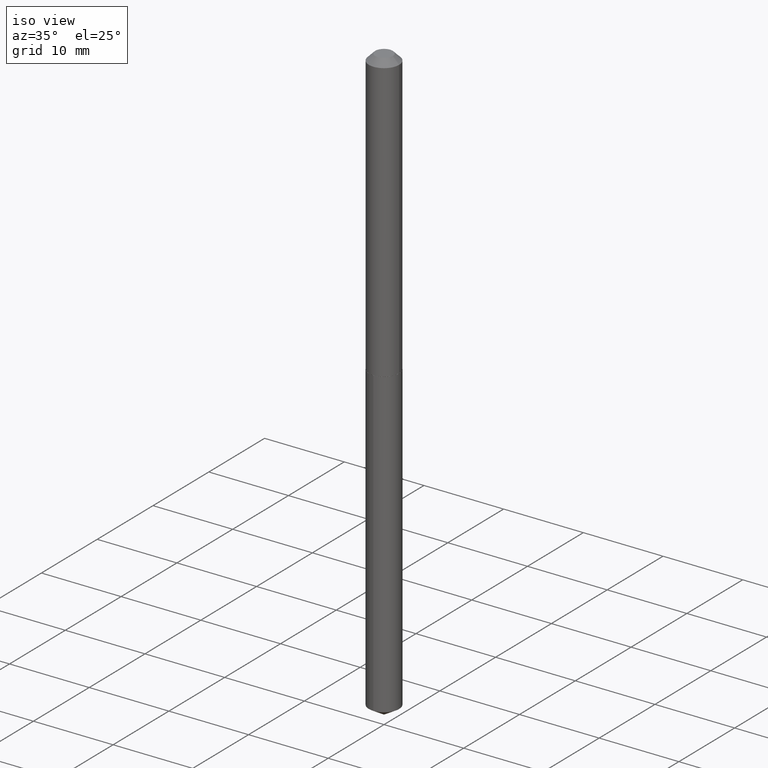
[diagram: clean part render]
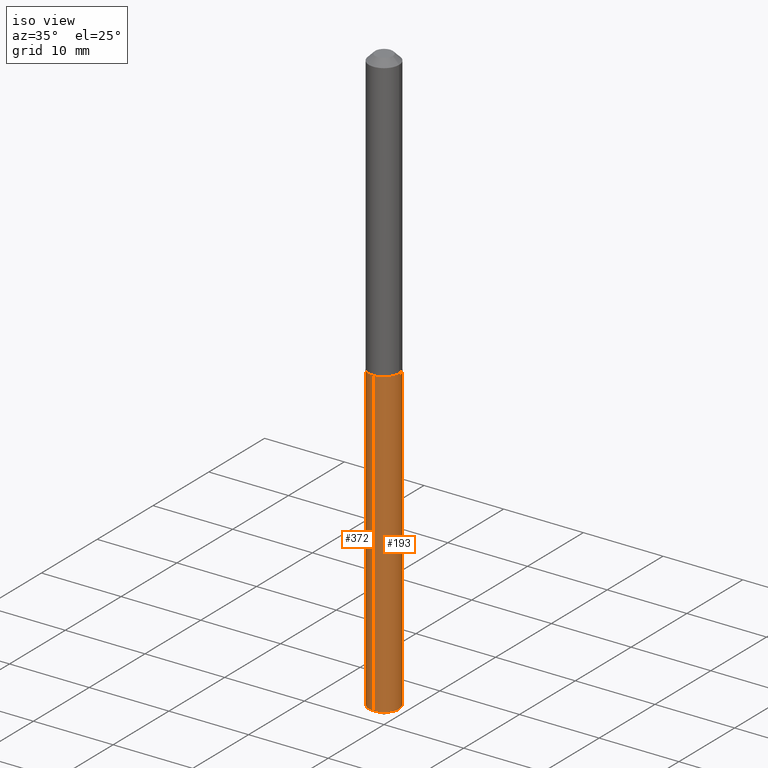
[diagram: same view with one multi-face feature highlighted, each face labeled with its STEP entity id]
A machine part, iso view. The highlighted faces form ONE feature: a constant-radius fillet chain: 2 tangent blend faces with common blend radius 1.8999 mm. The faces share edges in the B-rep.
Their STEP definitions:
[1] entity #193 (Cylinder):
#34 = CIRCLE ( 'NONE', #342, 0.07480000000000000537 ) ;
#35 = DIRECTION ( 'NONE',  ( -6.982962677686265922E-15, -1.000000000000000000, 3.652203200085913145E-15 ) ) ;
#48 = CARTESIAN_POINT ( 'NONE',  ( -5.223256082908981892E-16, -0.07480000000000491811, -1.409499999999999309 ) ) ;
#53 = CARTESIAN_POINT ( 'NONE',  ( -5.223256082908615071E-16, -0.07480000000001012228, -2.907855625696737611 ) ) ;
#55 = DIRECTION ( 'NONE',  ( -2.445411313727211212E-29, 3.491563671315162485E-15, 1.000000000000000000 ) ) ;
#63 = CARTESIAN_POINT ( 'NONE',  ( -5.223256082908982878E-16, -0.07480000000000491811, -1.409499999999999309 ) ) ;
#76 = VECTOR ( 'NONE', #308, 39.37007874015748143 ) ;
#78 = ORIENTED_EDGE ( 'NONE', *, *, #229, .F. ) ;
#91 = CARTESIAN_POINT ( 'NONE',  ( 5.314859663485892927E-16, 0.07479999999999507876, -1.409499999999999753 ) ) ;
#101 = CARTESIAN_POINT ( 'NONE',  ( 3.446888282317949307E-29, -4.921242947099412620E-15, -1.409499999999999531 ) ) ;
#102 = EDGE_CURVE ( 'NONE', #109, #245, #34, .T. ) ;
#109 = VERTEX_POINT ( 'NONE', #63 ) ;
#140 = AXIS2_PLACEMENT_3D ( 'NONE', #150, #55, #352 ) ;
#141 = FACE_OUTER_BOUND ( 'NONE', #323, .T. ) ;
#150 = CARTESIAN_POINT ( 'NONE',  ( 3.446888282317949307E-29, -4.921242947099412620E-15, -1.409499999999999531 ) ) ;
#175 = ORIENTED_EDGE ( 'NONE', *, *, #366, .T. ) ;
#187 = AXIS2_PLACEMENT_3D ( 'NONE', #212, #327, #300 ) ;
#193 = ADVANCED_FACE ( 'NONE', ( #141 ), #324, .T. ) ;
#212 = CARTESIAN_POINT ( 'NONE',  ( 7.110984081383565848E-29, -1.015284701649284259E-14, -2.907855625696737611 ) ) ;
#214 = ORIENTED_EDGE ( 'NONE', *, *, #102, .F. ) ;
#215 = LINE ( 'NONE', #48, #340 ) ;
#229 = EDGE_CURVE ( 'NONE', #296, #109, #215, .T. ) ;
#239 = VERTEX_POINT ( 'NONE', #329 ) ;
#245 = VERTEX_POINT ( 'NONE', #297 ) ;
#251 = LINE ( 'NONE', #91, #76 ) ;
#279 = EDGE_CURVE ( 'NONE', #239, #245, #251, .T. ) ;
#296 = VERTEX_POINT ( 'NONE', #53 ) ;
#297 = CARTESIAN_POINT ( 'NONE',  ( 5.314859663486262705E-16, 0.07479999999999509264, -1.409499999999999753 ) ) ;
#300 = DIRECTION ( 'NONE',  ( -6.982962677686265922E-15, -1.000000000000000000, 0.000000000000000000 ) ) ;
#308 = DIRECTION ( 'NONE',  ( -2.445411313727210932E-29, 3.491563671315162879E-15, 1.000000000000000000 ) ) ;
#309 = DIRECTION ( 'NONE',  ( -2.445411313727211212E-29, 3.491563671315162485E-15, 1.000000000000000000 ) ) ;
#321 = ORIENTED_EDGE ( 'NONE', *, *, #279, .T. ) ;
#323 = EDGE_LOOP ( 'NONE', ( #175, #321, #214, #78 ) ) ;
#324 = CYLINDRICAL_SURFACE ( 'NONE', #140, 0.07479999999999999150 ) ;
#327 = DIRECTION ( 'NONE',  ( -2.445411313727211212E-29, 3.491563671315162485E-15, 1.000000000000000000 ) ) ;
#329 = CARTESIAN_POINT ( 'NONE',  ( 5.314859663486257775E-16, 0.07479999999998983296, -2.907855625696737611 ) ) ;
#340 = VECTOR ( 'NONE', #353, 39.37007874015748143 ) ;
#342 = AXIS2_PLACEMENT_3D ( 'NONE', #101, #309, #35 ) ;
#352 = DIRECTION ( 'NONE',  ( -6.982962677686265922E-15, -1.000000000000000000, 3.652203200085913934E-15 ) ) ;
#353 = DIRECTION ( 'NONE',  ( -2.445411313727210932E-29, 3.491563671315162879E-15, 1.000000000000000000 ) ) ;
#366 = EDGE_CURVE ( 'NONE', #296, #239, #374, .T. ) ;
#374 = CIRCLE ( 'NONE', #187, 0.07479999999999999150 ) ;
[2] entity #372 (Cylinder):
#14 = EDGE_LOOP ( 'NONE', ( #376, #88, #118, #216 ) ) ;
#32 = CARTESIAN_POINT ( 'NONE',  ( 7.110984081383565848E-29, -1.015284701649284259E-14, -2.907855625696737611 ) ) ;
#48 = CARTESIAN_POINT ( 'NONE',  ( -5.223256082908981892E-16, -0.07480000000000491811, -1.409499999999999309 ) ) ;
#53 = CARTESIAN_POINT ( 'NONE',  ( -5.223256082908615071E-16, -0.07480000000001012228, -2.907855625696737611 ) ) ;
#63 = CARTESIAN_POINT ( 'NONE',  ( -5.223256082908982878E-16, -0.07480000000000491811, -1.409499999999999309 ) ) ;
#76 = VECTOR ( 'NONE', #308, 39.37007874015748143 ) ;
#88 = ORIENTED_EDGE ( 'NONE', *, *, #132, .T. ) ;
#91 = CARTESIAN_POINT ( 'NONE',  ( 5.314859663485892927E-16, 0.07479999999999507876, -1.409499999999999753 ) ) ;
#100 = AXIS2_PLACEMENT_3D ( 'NONE', #154, #277, #388 ) ;
#105 = CARTESIAN_POINT ( 'NONE',  ( 3.446888282317949307E-29, -4.921242947099412620E-15, -1.409499999999999531 ) ) ;
#109 = VERTEX_POINT ( 'NONE', #63 ) ;
#113 = AXIS2_PLACEMENT_3D ( 'NONE', #32, #285, #307 ) ;
#118 = ORIENTED_EDGE ( 'NONE', *, *, #229, .T. ) ;
#132 = EDGE_CURVE ( 'NONE', #239, #296, #368, .T. ) ;
#152 = CYLINDRICAL_SURFACE ( 'NONE', #100, 0.07479999999999999150 ) ;
#154 = CARTESIAN_POINT ( 'NONE',  ( 3.446888282317949307E-29, -4.921242947099412620E-15, -1.409499999999999531 ) ) ;
#180 = DIRECTION ( 'NONE',  ( -6.982962677686265922E-15, -1.000000000000000000, 3.652203200085913145E-15 ) ) ;
#210 = DIRECTION ( 'NONE',  ( -2.445411313727211212E-29, 3.491563671315162485E-15, 1.000000000000000000 ) ) ;
#215 = LINE ( 'NONE', #48, #340 ) ;
#216 = ORIENTED_EDGE ( 'NONE', *, *, #218, .F. ) ;
#218 = EDGE_CURVE ( 'NONE', #245, #109, #261, .T. ) ;
#229 = EDGE_CURVE ( 'NONE', #296, #109, #215, .T. ) ;
#239 = VERTEX_POINT ( 'NONE', #329 ) ;
#245 = VERTEX_POINT ( 'NONE', #297 ) ;
#251 = LINE ( 'NONE', #91, #76 ) ;
#261 = CIRCLE ( 'NONE', #318, 0.07480000000000000537 ) ;
#277 = DIRECTION ( 'NONE',  ( -2.445411313727211212E-29, 3.491563671315162485E-15, 1.000000000000000000 ) ) ;
#279 = EDGE_CURVE ( 'NONE', #239, #245, #251, .T. ) ;
#285 = DIRECTION ( 'NONE',  ( -2.445411313727211212E-29, 3.491563671315162485E-15, 1.000000000000000000 ) ) ;
#296 = VERTEX_POINT ( 'NONE', #53 ) ;
#297 = CARTESIAN_POINT ( 'NONE',  ( 5.314859663486262705E-16, 0.07479999999999509264, -1.409499999999999753 ) ) ;
#307 = DIRECTION ( 'NONE',  ( -6.982962677686265922E-15, -1.000000000000000000, 0.000000000000000000 ) ) ;
#308 = DIRECTION ( 'NONE',  ( -2.445411313727210932E-29, 3.491563671315162879E-15, 1.000000000000000000 ) ) ;
#318 = AXIS2_PLACEMENT_3D ( 'NONE', #105, #210, #180 ) ;
#329 = CARTESIAN_POINT ( 'NONE',  ( 5.314859663486257775E-16, 0.07479999999998983296, -2.907855625696737611 ) ) ;
#330 = FACE_OUTER_BOUND ( 'NONE', #14, .T. ) ;
#340 = VECTOR ( 'NONE', #353, 39.37007874015748143 ) ;
#353 = DIRECTION ( 'NONE',  ( -2.445411313727210932E-29, 3.491563671315162879E-15, 1.000000000000000000 ) ) ;
#368 = CIRCLE ( 'NONE', #113, 0.07479999999999999150 ) ;
#372 = ADVANCED_FACE ( 'NONE', ( #330 ), #152, .T. ) ;
#376 = ORIENTED_EDGE ( 'NONE', *, *, #279, .F. ) ;
#388 = DIRECTION ( 'NONE',  ( -6.982962677686265922E-15, -1.000000000000000000, 3.652203200085913934E-15 ) ) ;